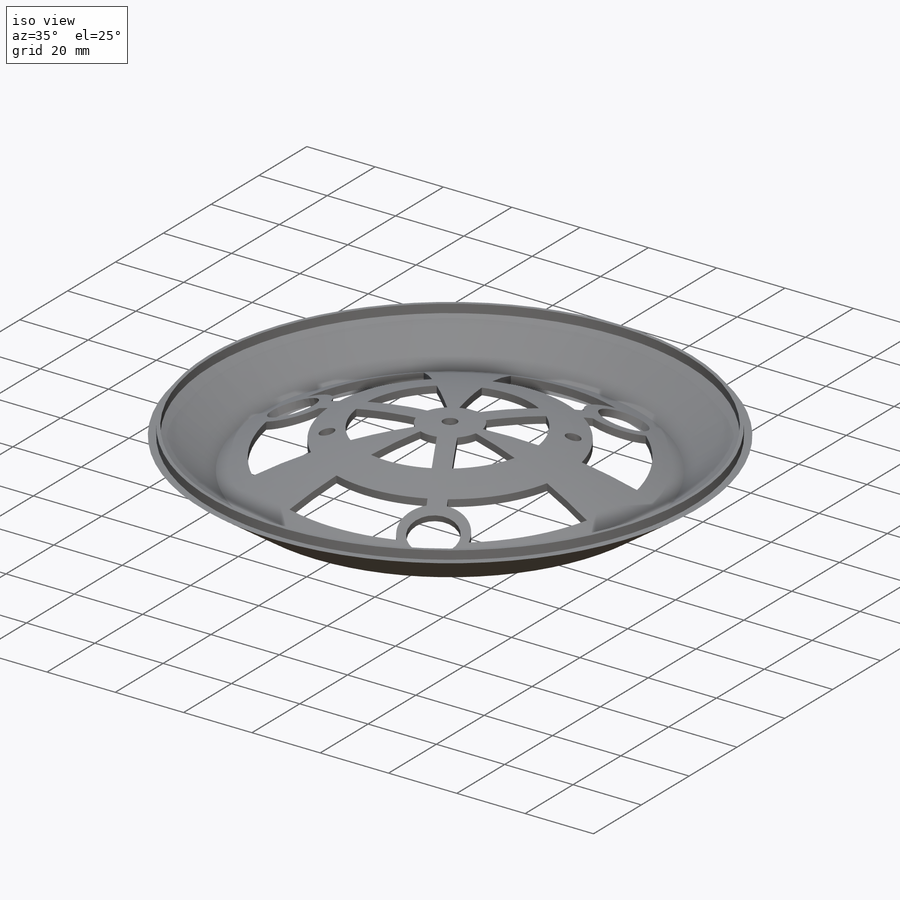
[diagram: iso view]
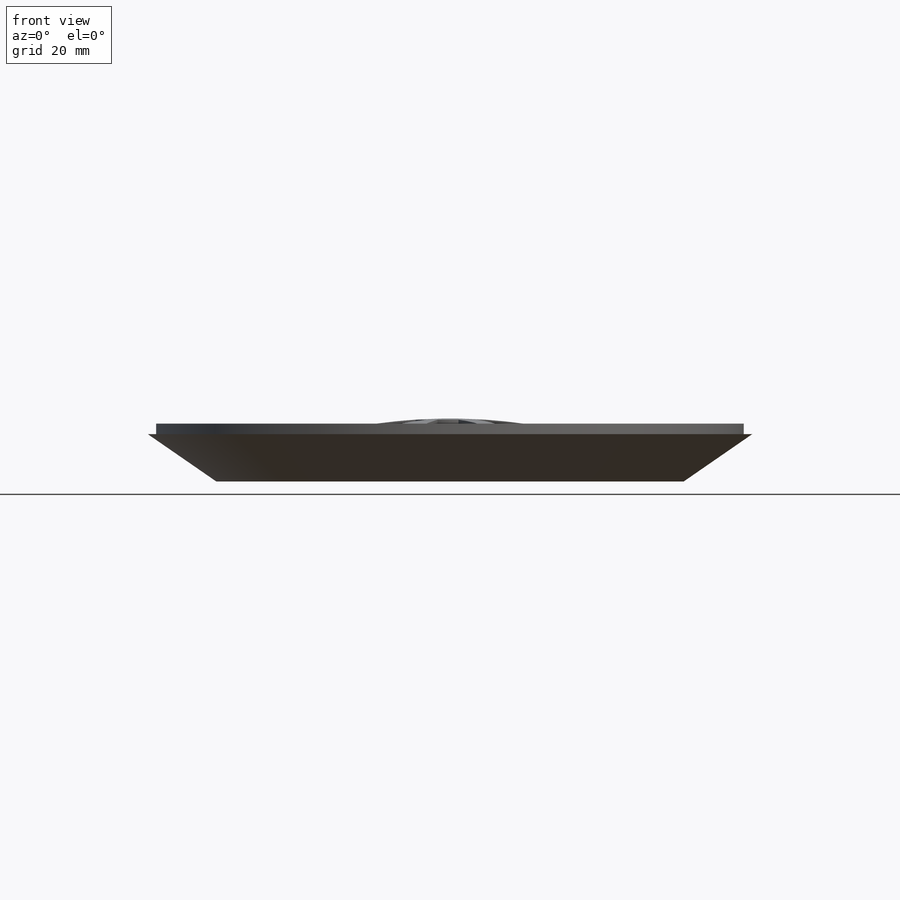
[diagram: front view]
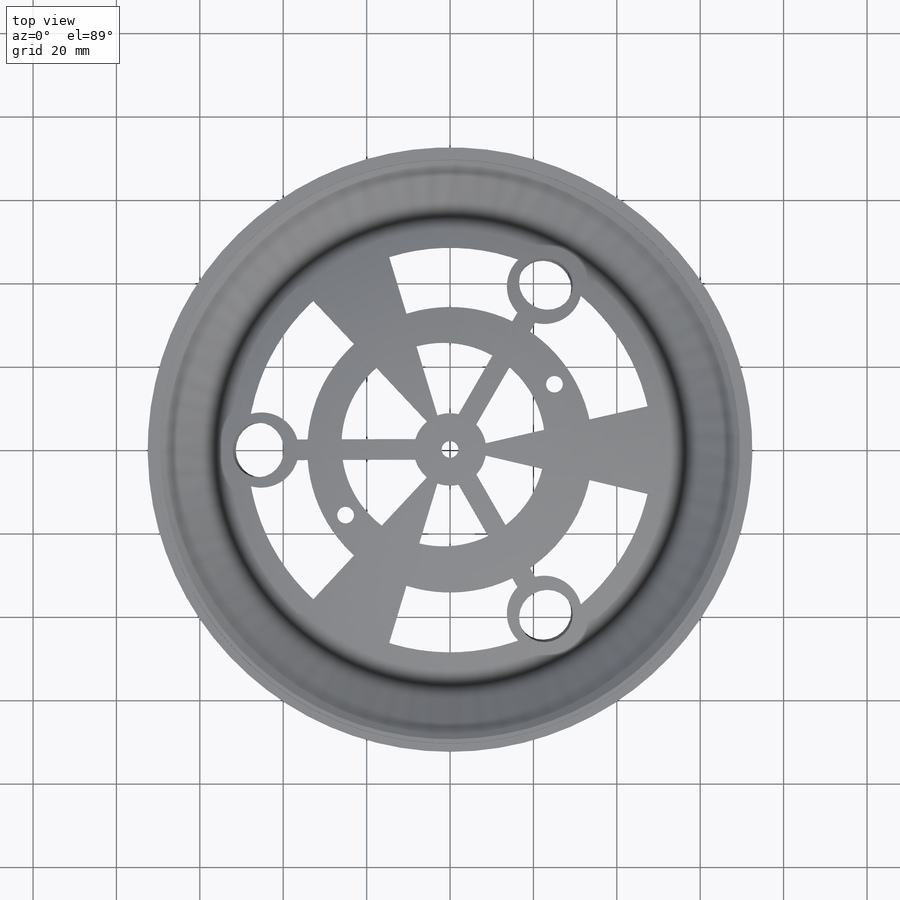
[diagram: top view]
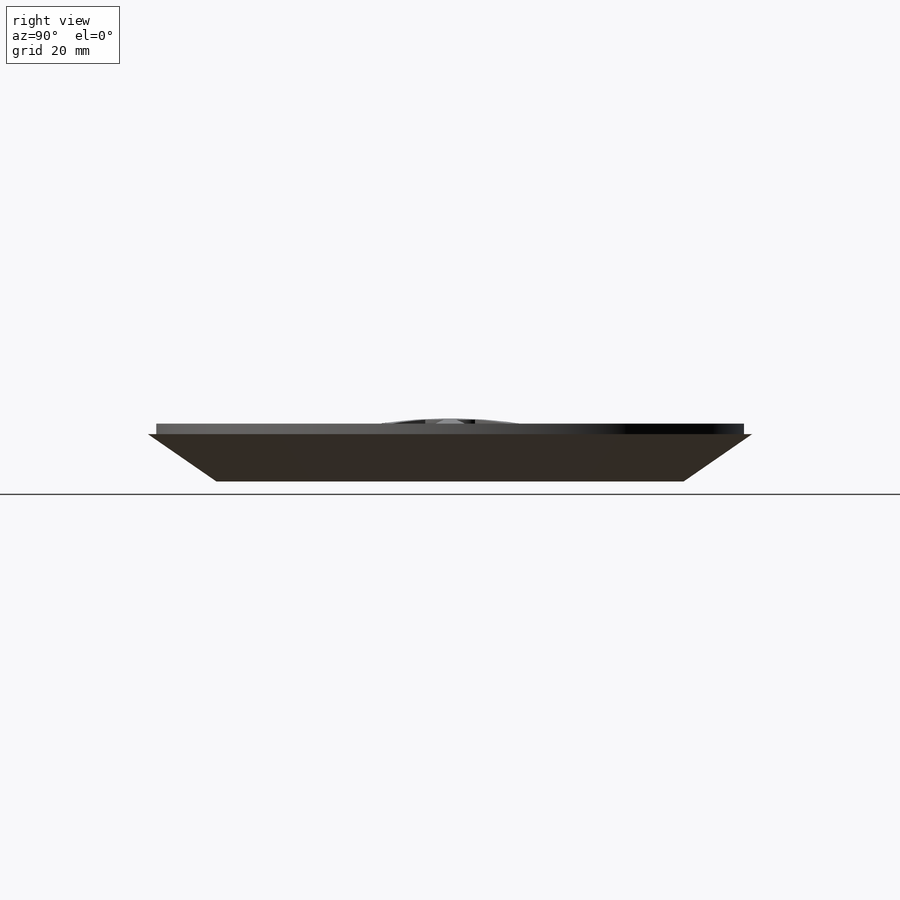
[diagram: right view]
SOLIDWORKS PART (.sldprt)
format: sldprt  version: not decoded by parser v0  size: 432,128 bytes
history: native  units: mm
features: sketch x7, plane x3, cut_extrude x3, revolve x2, cut_revolve x2, material x1, pattern_circular x1 (+10 scaffold rows collapsed)
feature tree (29):
  scaffold x10  (default folders/planes/origin — collapsed)
  material  "材质 <未指定>"
  plane  "前视基准面"
  plane  "上视基准面"
  plane  "右视基准面"
  sketch  "草图1"  dims[c1.D1=126.5mm c1.D2=128.5mm c2.D1=~8.371609mm]
  revolve  "旋转1"  Angle=360deg
  sketch  "草图2"  dims[c1.D1=~153.430226mm c2.D1=21.0deg c2.D2=6.55mm]
  cut_revolve  "切除-旋转1"  Angle=360deg
  pattern_circular  "阵列(圆周)1"  Count=3 Angle=360deg
  sketch  "草图3"  dims[c1.D1=4.0mm c1.D2=4.0mm c2.D1=~44.079598mm c2.D2=~29.556975mm c2.D3=~44.164052mm]
  cut_extrude  "切除-拉伸1"  Depth=169mm
  sketch  "草图4"  dims[D1=4.0mm]
  cut_extrude  "切除-拉伸2"  Depth=169mm
  sketch  "草图6"  dims[D1=~68.591228mm]
  cut_revolve  "切除-旋转2"  Angle=360deg
  sketch  "草图7"  dims[D1=~70.894901mm]
  revolve  "旋转2"  Angle=360deg
  sketch  "草图8"  dims[c1.D1=18.0mm c1.D2=~50.847157mm c2.D1=~28.316699mm c3.D1=3.0]
  cut_extrude  "切除-拉伸4"  Depth=354mm
decode coverage: 15 of 15 modeling features carry decoded parameters
note: ~ marks probable driven/reference dimensions
note: suppression state not decoded; provenance and decode notes live in map.json
